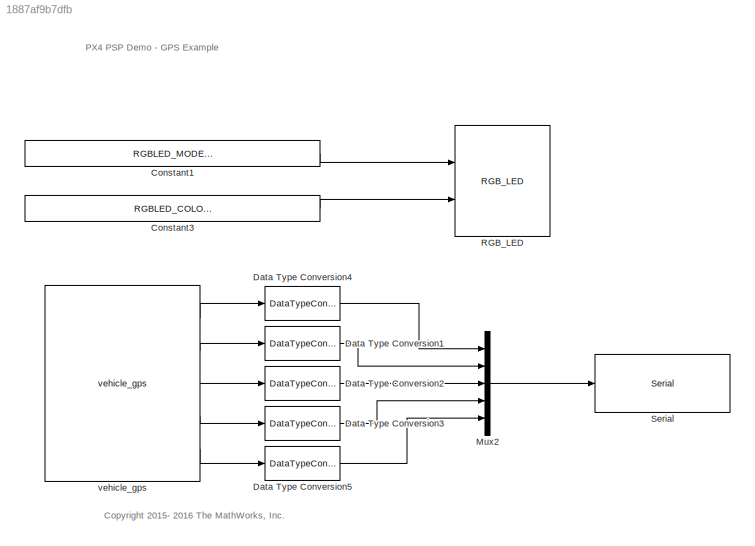
MODEL slx_1887af9b7dfb
KIND model
CONFIG AbsTol = auto
CONFIG EnableMultiTasking = off
CONFIG FixedStep = 1/250
CONFIG MaxStep = auto
CONFIG MinStep = auto
CONFIG PostLoadFcn = Ts = 1/250;
CONFIG RelTol = 1e-3
CONFIG SampleTimeConstraint = Unconstrained
CONFIG Solver = ode3
CONFIG SolverName = ode3
CONFIG StartTime = 0.0
CONFIG StopTime = inf
BLOCK [Constant] Constant1
  OutDataTypeStr = Enum: RGBLED_MODE_ENUM
  SampleTime = Ts
  Value = RGBLED_MODE_ENUM.MODE_BREATHE
BLOCK [Constant] Constant3
  OutDataTypeStr = Enum: RGBLED_COLOR_ENUM
  SampleTime = Ts
  Value = RGBLED_COLOR_ENUM.COLOR_GREEN
BLOCK [DataTypeConversion] Data Type Conversion1
  OutDataTypeStr = single
  RndMeth = Floor
  SaturateOnIntegerOverflow = off
BLOCK [DataTypeConversion] Data Type Conversion2
  OutDataTypeStr = single
  RndMeth = Floor
  SaturateOnIntegerOverflow = off
BLOCK [DataTypeConversion] Data Type Conversion3
  OutDataTypeStr = single
  RndMeth = Floor
  SaturateOnIntegerOverflow = off
BLOCK [DataTypeConversion] Data Type Conversion4
  OutDataTypeStr = single
  RndMeth = Floor
  SaturateOnIntegerOverflow = off
BLOCK [DataTypeConversion] Data Type Conversion5
  OutDataTypeStr = single
  RndMeth = Floor
  SaturateOnIntegerOverflow = off
BLOCK [Mux] Mux2
  DisplayOption = bar
  Inputs = 5
  Ports = [5, 1]
BLOCK [Reference] RGB_LED  REF=pixhawk_slib_sensors_actuators/RGB_LED
  Ports = [2]
  SourceBlock = pixhawk_slib_sensors_actuators/RGB_LED
  SourceType = PX4_RGBLED - controls the mode and color of the Pixhawk RGB LED
BLOCK [Reference] Serial  REF=pixhawk_slib_ADC_serial/Serial
  Ports = [1]
  SourceBlock = pixhawk_slib_ADC_serial/Serial
  SourceType = codertarget.pixhawk.blocks.SerialCOM
BLOCK [Reference] vehicle_gps  REF=pixhawk_slib_sensors_actuators/vehicle_gps
  Ports = [0, 5]
  SourceBlock = pixhawk_slib_sensors_actuators/vehicle_gps
  SourceType = PX4_Vehicle_GPS
ANNOTATION (root): PX4 PSP Demo - GPS Example
ANNOTATION (root): <copyright redacted>
LINE Constant1:1 -> RGB_LED:1
LINE Constant3:1 -> RGB_LED:2
LINE Data Type Conversion1:1 -> Mux2:2
LINE Data Type Conversion2:1 -> Mux2:3
LINE Data Type Conversion3:1 -> Mux2:4
LINE Data Type Conversion4:1 -> Mux2:1
LINE Data Type Conversion5:1 -> Mux2:5
LINE Mux2:1 -> Serial:1
LINE vehicle_gps:1 -> Data Type Conversion4:1
LINE vehicle_gps:2 -> Data Type Conversion1:1
LINE vehicle_gps:3 -> Data Type Conversion2:1
LINE vehicle_gps:4 -> Data Type Conversion3:1
LINE vehicle_gps:5 -> Data Type Conversion5:1
